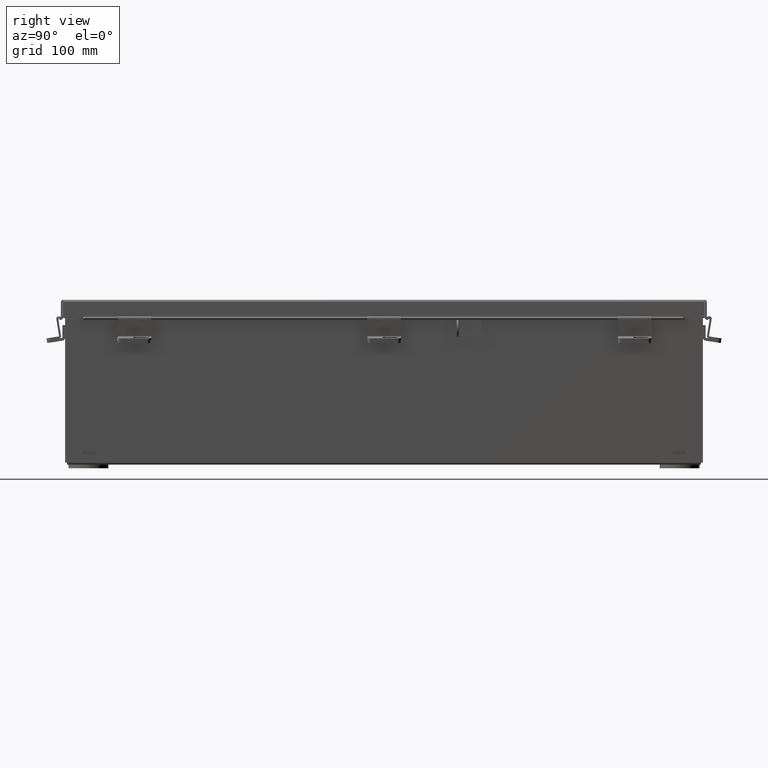
[diagram: clean part render]
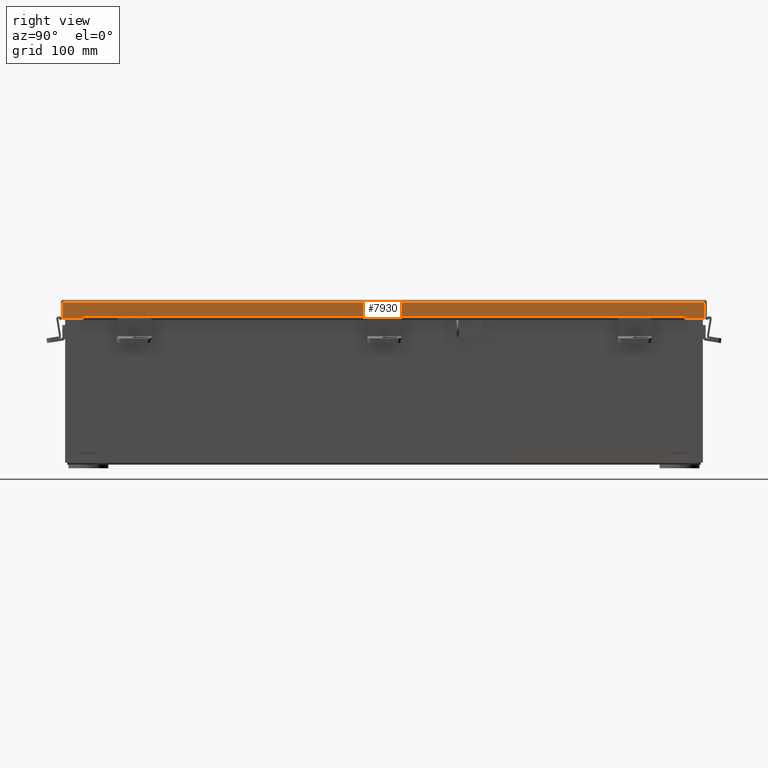
[diagram: same view with one face highlighted and labeled with its STEP entity id]
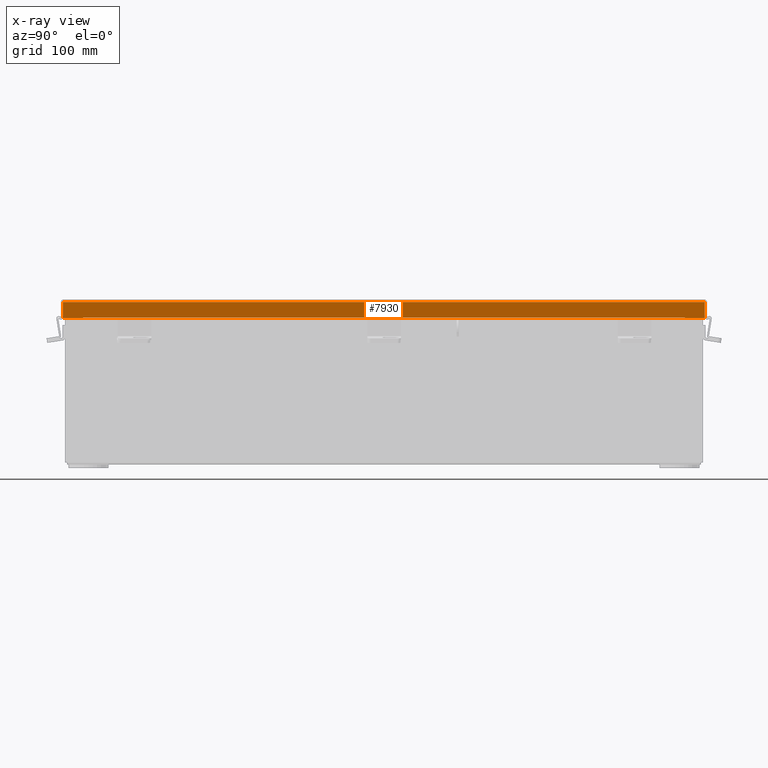
[diagram: x-ray of the same camera — body ghosted, the highlighted face saturated]
A machine part, right view. The second image highlights one B-rep face of the part: STEP entity #7930.
The next image is the same camera in x-ray: the body ghosted, the highlighted face saturated — about 0% of this face is hidden behind the body in this view.
In plain terms, the highlighted planar face has unit normal (-1, 0, -0).
Its self-contained STEP definition (entity closure, byte-faithful):
#294 = VECTOR ( 'NONE', #4432, 39.37007874015748100 ) ;
#507 = DIRECTION ( 'NONE',  ( 1.000000000000000000, 5.772765216191749400E-030, 3.569293475308537100E-015 ) ) ;
#867 = CARTESIAN_POINT ( 'NONE',  ( -3.156250000000004900, 11.32447893218811300, 0.6123000000000091700 ) ) ;
#1217 = VERTEX_POINT ( 'NONE', #2422 ) ;
#2270 = LINE ( 'NONE', #18096, #6298 ) ;
#2422 = CARTESIAN_POINT ( 'NONE',  ( -3.156250000000010200, -11.32447893218815700, 0.5967115427318804300 ) ) ;
#2561 = ORIENTED_EDGE ( 'NONE', *, *, #21624, .F. ) ;
#2605 = FACE_OUTER_BOUND ( 'NONE', #3571, .T. ) ;
#3463 = ORIENTED_EDGE ( 'NONE', *, *, #4806, .F. ) ;
#3571 = EDGE_LOOP ( 'NONE', ( #7703, #9278, #3463, #6975, #12951, #11909, #14693, #2561 ) ) ;
#3662 = VERTEX_POINT ( 'NONE', #13577 ) ;
#3942 = CARTESIAN_POINT ( 'NONE',  ( -3.156250000000004900, 4.802076551362963100E-018, 0.6122999999999994000 ) ) ;
#4432 = DIRECTION ( 'NONE',  ( -3.569293475308537100E-015, 2.100342160150935500E-029, 1.000000000000000000 ) ) ;
#4520 = DIRECTION ( 'NONE',  ( 3.504962610060232400E-014, 1.401985044024088700E-013, 1.000000000000000000 ) ) ;
#4806 = EDGE_CURVE ( 'NONE', #11420, #16392, #8978, .T. ) ;
#5032 = EDGE_CURVE ( 'NONE', #12671, #20377, #13316, .T. ) ;
#5431 = LINE ( 'NONE', #8913, #13580 ) ;
#5501 = LINE ( 'NONE', #14885, #6035 ) ;
#5926 = VECTOR ( 'NONE', #15298, 39.37007874015748100 ) ;
#6035 = VECTOR ( 'NONE', #4520, 39.37007874015748100 ) ;
#6298 = VECTOR ( 'NONE', #19864, 39.37007874015748100 ) ;
#6875 = DIRECTION ( 'NONE',  ( 3.504962610060390200E-014, 1.401985044024150000E-013, -1.000000000000000000 ) ) ;
#6975 = ORIENTED_EDGE ( 'NONE', *, *, #9108, .F. ) ;
#7026 = VECTOR ( 'NONE', #15040, 39.37007874015748100 ) ;
#7210 = EDGE_CURVE ( 'NONE', #16320, #18445, #12395, .T. ) ;
#7317 = AXIS2_PLACEMENT_3D ( 'NONE', #10909, #507, #12655 ) ;
#7346 = DIRECTION ( 'NONE',  ( 5.768659154690247000E-030, 1.000000000000000000, 2.085551018178049700E-029 ) ) ;
#7426 = PLANE ( 'NONE',  #7317 ) ;
#7703 = ORIENTED_EDGE ( 'NONE', *, *, #7210, .F. ) ;
#7930 = ADVANCED_FACE ( 'NONE', ( #2605 ), #7426, .F. ) ;
#8294 = CARTESIAN_POINT ( 'NONE',  ( -3.156249999999997800, 12.07447893218811300, 0.01300000000000120000 ) ) ;
#8913 = CARTESIAN_POINT ( 'NONE',  ( -3.156250000000004900, 4.802076551362963100E-018, 0.6122999999999994000 ) ) ;
#8978 = LINE ( 'NONE', #9658, #294 ) ;
#9108 = EDGE_CURVE ( 'NONE', #3662, #11420, #2270, .T. ) ;
#9278 = ORIENTED_EDGE ( 'NONE', *, *, #10477, .T. ) ;
#9571 = CARTESIAN_POINT ( 'NONE',  ( -3.156250000000004900, 12.07447893218811300, 0.6123000000000015100 ) ) ;
#9658 = CARTESIAN_POINT ( 'NONE',  ( -3.156249999999997800, 12.07447893218811300, 0.0000000000000000000 ) ) ;
#9723 = CARTESIAN_POINT ( 'NONE',  ( -3.156250000000004900, -11.32447893218816000, 0.6123000000000005100 ) ) ;
#10397 = CARTESIAN_POINT ( 'NONE',  ( -3.156250000000010200, 11.32447893218811400, 0.5967115427318880900 ) ) ;
#10477 = EDGE_CURVE ( 'NONE', #16320, #16392, #5431, .T. ) ;
#10909 = CARTESIAN_POINT ( 'NONE',  ( -3.156249999999997800, 4.802076551362963100E-018, -1.202013117212275700E-014 ) ) ;
#11420 = VERTEX_POINT ( 'NONE', #8294 ) ;
#11573 = CARTESIAN_POINT ( 'NONE',  ( -3.156250000000011100, 11.32447893218811400, 0.5967115427318880900 ) ) ;
#11670 = CARTESIAN_POINT ( 'NONE',  ( -3.156249999999997800, -12.07447893218815500, -1.092739197465705300E-014 ) ) ;
#11861 = VECTOR ( 'NONE', #6875, 39.37007874015748100 ) ;
#11909 = ORIENTED_EDGE ( 'NONE', *, *, #5032, .T. ) ;
#12039 = CARTESIAN_POINT ( 'NONE',  ( -3.156250000000005800, 11.32447893218811300, 0.6123000000000080600 ) ) ;
#12098 = EDGE_CURVE ( 'NONE', #3662, #12671, #20301, .T. ) ;
#12395 = LINE ( 'NONE', #12039, #11861 ) ;
#12655 = DIRECTION ( 'NONE',  ( 3.569293475308537100E-015, -2.100342160150935500E-029, -1.000000000000000000 ) ) ;
#12671 = VERTEX_POINT ( 'NONE', #18597 ) ;
#12951 = ORIENTED_EDGE ( 'NONE', *, *, #12098, .T. ) ;
#13316 = LINE ( 'NONE', #3942, #17890 ) ;
#13577 = CARTESIAN_POINT ( 'NONE',  ( -3.156249999999997800, -12.07447893218815500, 0.01299999999999901400 ) ) ;
#13580 = VECTOR ( 'NONE', #19292, 39.37007874015748100 ) ;
#14693 = ORIENTED_EDGE ( 'NONE', *, *, #17610, .F. ) ;
#14885 = CARTESIAN_POINT ( 'NONE',  ( -3.156250000000011100, -11.32447893218815700, 0.5967115427318804300 ) ) ;
#15040 = DIRECTION ( 'NONE',  ( -5.768659154690247000E-030, -1.000000000000000000, -2.085551018178049700E-029 ) ) ;
#15298 = DIRECTION ( 'NONE',  ( -3.569293475308537100E-015, 2.100342160150935500E-029, 1.000000000000000000 ) ) ;
#16320 = VERTEX_POINT ( 'NONE', #867 ) ;
#16392 = VERTEX_POINT ( 'NONE', #9571 ) ;
#17315 = LINE ( 'NONE', #11573, #7026 ) ;
#17610 = EDGE_CURVE ( 'NONE', #1217, #20377, #5501, .T. ) ;
#17890 = VECTOR ( 'NONE', #7346, 39.37007874015748100 ) ;
#18096 = CARTESIAN_POINT ( 'NONE',  ( -3.156249999999997800, 12.15624999999997700, 0.01300000000000010700 ) ) ;
#18445 = VERTEX_POINT ( 'NONE', #10397 ) ;
#18597 = CARTESIAN_POINT ( 'NONE',  ( -3.156250000000004900, -12.07447893218815500, 0.6123000000000005100 ) ) ;
#19292 = DIRECTION ( 'NONE',  ( 5.768659154690247000E-030, 1.000000000000000000, 2.085551018178049700E-029 ) ) ;
#19864 = DIRECTION ( 'NONE',  ( 5.601469769945357200E-030, 1.000000000000000000, 4.494557110400884500E-017 ) ) ;
#20301 = LINE ( 'NONE', #11670, #5926 ) ;
#20377 = VERTEX_POINT ( 'NONE', #9723 ) ;
#21624 = EDGE_CURVE ( 'NONE', #18445, #1217, #17315, .T. ) ;